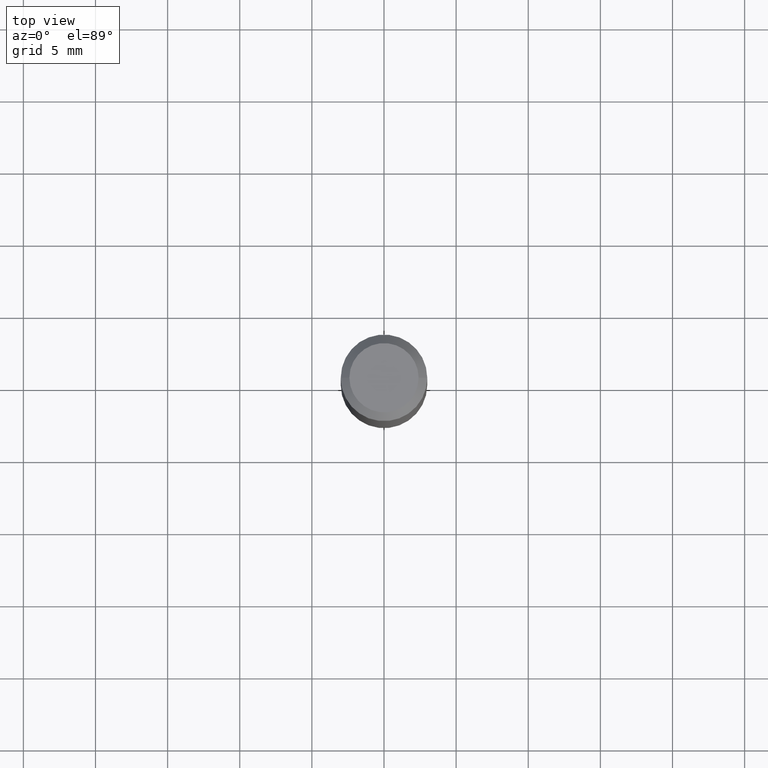
[diagram: clean part render]
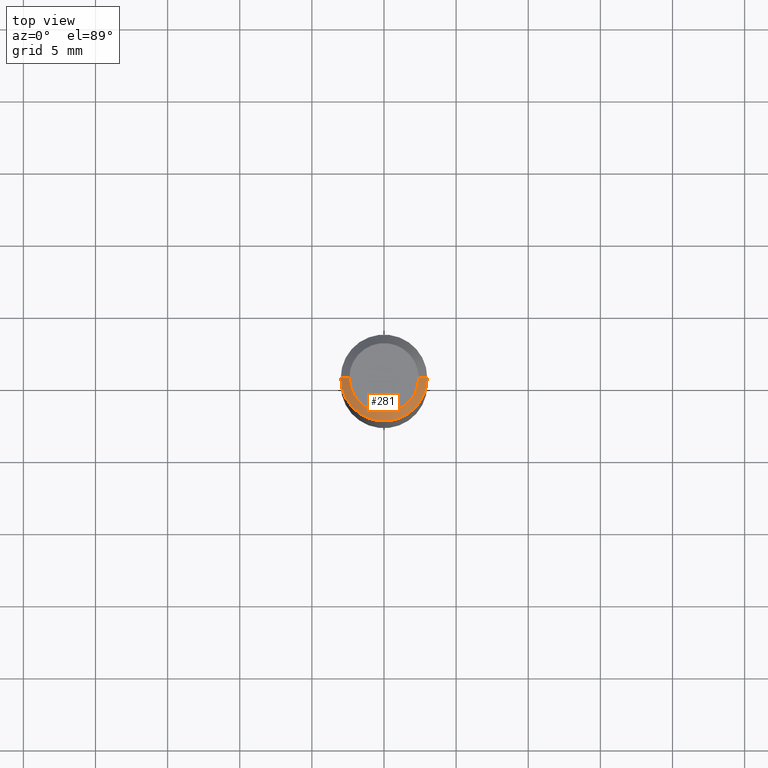
[diagram: same view with one face highlighted and labeled with its STEP entity id]
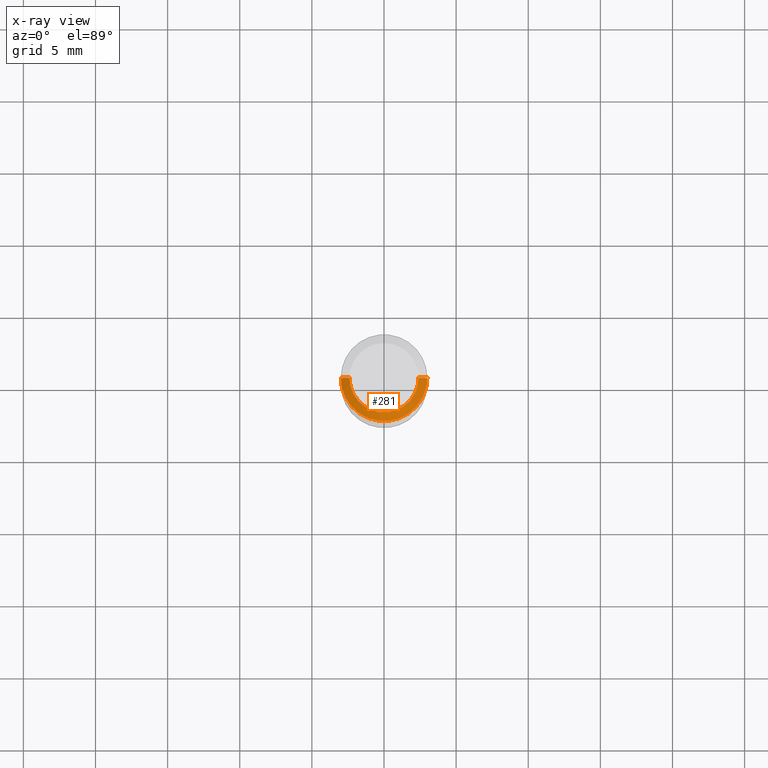
[diagram: x-ray of the same camera — body ghosted, the highlighted face saturated]
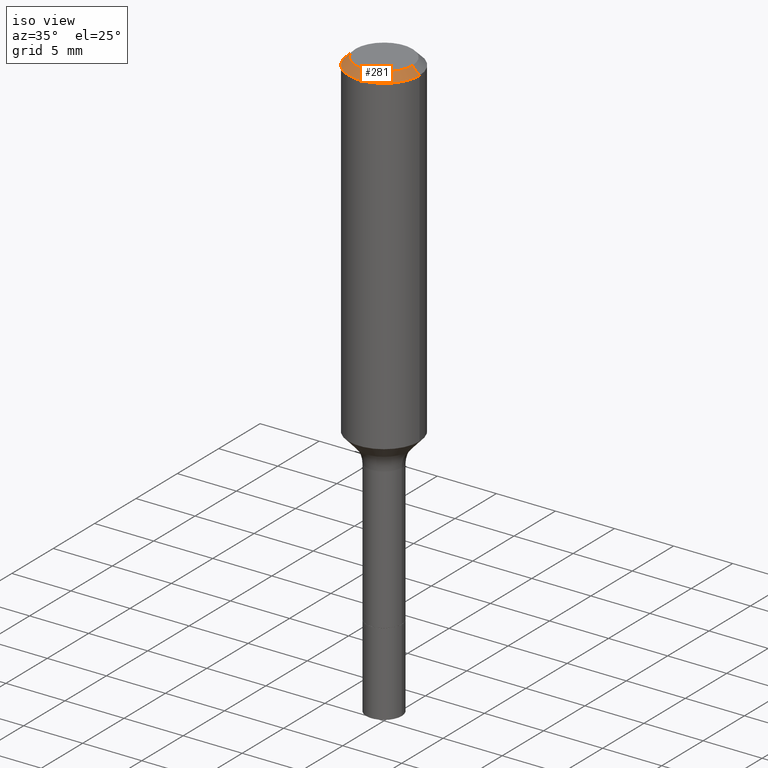
[diagram: same view with one face highlighted and labeled with its STEP entity id]
A machine part, top view. The second image highlights one B-rep face of the part: STEP entity #281.
The next image is the same camera in x-ray: the body ghosted, the highlighted face saturated — about 0% of this face is hidden behind the body in this view.
A second angle (iso view) of the same face is appended — the face is thin or edge-on in the first view.
In plain terms, the highlighted conical surface has half-angle 45 deg.
Its self-contained STEP definition (entity closure, byte-faithful):
#3 = LINE ( 'NONE', #334, #376 ) ;
#5 = CARTESIAN_POINT ( 'NONE',  ( 7.545787641473140628E-46, -1.077338491108201769E-31, -3.085620075131671975E-17 ) ) ;
#29 = EDGE_CURVE ( 'NONE', #461, #186, #507, .T. ) ;
#51 = FACE_OUTER_BOUND ( 'NONE', #313, .T. ) ;
#61 = AXIS2_PLACEMENT_3D ( 'NONE', #175, #404, #339 ) ;
#99 = CARTESIAN_POINT ( 'NONE',  ( -0.09447999999999998066, 7.009847083995354710E-16, -3.085620075132147757E-17 ) ) ;
#161 = CIRCLE ( 'NONE', #450, 0.1180999999999999966 ) ;
#173 = DIRECTION ( 'NONE',  ( -2.445468806185136597E-29, 3.491481338843145583E-15, 1.000000000000000000 ) ) ;
#175 = CARTESIAN_POINT ( 'NONE',  ( 5.776197320209328408E-31, -8.246878922347560526E-17, -0.02362000000000014435 ) ) ;
#186 = VERTEX_POINT ( 'NONE', #407 ) ;
#200 = VERTEX_POINT ( 'NONE', #518 ) ;
#213 = EDGE_CURVE ( 'NONE', #200, #349, #3, .T. ) ;
#224 = DIRECTION ( 'NONE',  ( 1.000000000000000000, -6.982962677686267499E-15, 4.875432709231658792E-29 ) ) ;
#242 = ORIENTED_EDGE ( 'NONE', *, *, #29, .T. ) ;
#265 = DIRECTION ( 'NONE',  ( -2.445468806185136597E-29, 3.491481338843145583E-15, 1.000000000000000000 ) ) ;
#281 = ADVANCED_FACE ( 'NONE', ( #51 ), #292, .T. ) ;
#292 = CONICAL_SURFACE ( 'NONE', #61, 0.1180999999999999966, 0.7853981633974461696 ) ;
#313 = EDGE_LOOP ( 'NONE', ( #499, #321, #242, #423 ) ) ;
#321 = ORIENTED_EDGE ( 'NONE', *, *, #434, .F. ) ;
#332 = CARTESIAN_POINT ( 'NONE',  ( 5.776197320209328408E-31, -8.246878922347560526E-17, -0.02362000000000014435 ) ) ;
#334 = CARTESIAN_POINT ( 'NONE',  ( 0.1180999999999999966, -8.926936027602933910E-16, -0.02362000000000014435 ) ) ;
#339 = DIRECTION ( 'NONE',  ( -1.000000000000000000, 6.982962677686266711E-15, 0.000000000000000000 ) ) ;
#349 = VERTEX_POINT ( 'NONE', #441 ) ;
#355 = VECTOR ( 'NONE', #397, 39.37007874015748143 ) ;
#376 = VECTOR ( 'NONE', #514, 39.37007874015748143 ) ;
#383 = CIRCLE ( 'NONE', #471, 0.09447999999999998066 ) ;
#397 = DIRECTION ( 'NONE',  ( -0.7071067811865460184, 2.468850131082241283E-15, -0.7071067811865490160 ) ) ;
#399 = CARTESIAN_POINT ( 'NONE',  ( -0.1180999999999999966, 7.422191030112725094E-16, -0.02362000000000014435 ) ) ;
#404 = DIRECTION ( 'NONE',  ( 2.445468806185136597E-29, -3.491481338843145583E-15, -1.000000000000000000 ) ) ;
#407 = CARTESIAN_POINT ( 'NONE',  ( -0.1180999999999999966, -1.167200481320617671E-15, -0.02362000000000014435 ) ) ;
#423 = ORIENTED_EDGE ( 'NONE', *, *, #466, .T. ) ;
#434 = EDGE_CURVE ( 'NONE', #461, #200, #383, .T. ) ;
#441 = CARTESIAN_POINT ( 'NONE',  ( 0.1180999999999999966, -9.071566814582237199E-16, -0.02362000000000014435 ) ) ;
#450 = AXIS2_PLACEMENT_3D ( 'NONE', #332, #265, #515 ) ;
#461 = VERTEX_POINT ( 'NONE', #99 ) ;
#466 = EDGE_CURVE ( 'NONE', #186, #349, #161, .T. ) ;
#471 = AXIS2_PLACEMENT_3D ( 'NONE', #5, #173, #224 ) ;
#499 = ORIENTED_EDGE ( 'NONE', *, *, #213, .F. ) ;
#507 = LINE ( 'NONE', #399, #355 ) ;
#514 = DIRECTION ( 'NONE',  ( 0.7071067811865460184, -7.319954787623251312E-15, -0.7071067811865490160 ) ) ;
#515 = DIRECTION ( 'NONE',  ( 1.000000000000000000, -6.982962677686266711E-15, 0.000000000000000000 ) ) ;
#518 = CARTESIAN_POINT ( 'NONE',  ( 0.09447999999999998066, -7.704367267948738690E-16, -3.085620075131172158E-17 ) ) ;